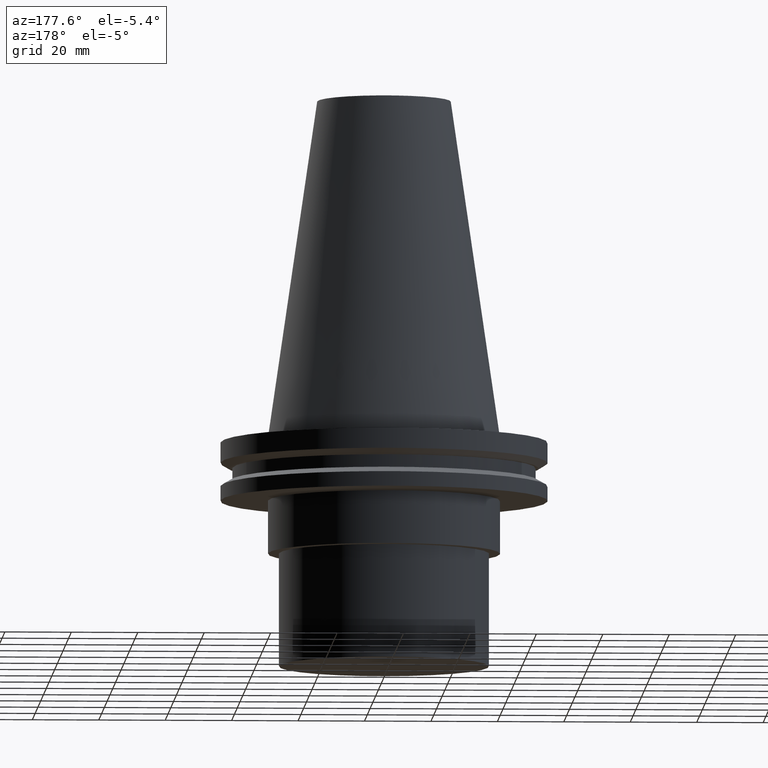
[diagram: clean part render]
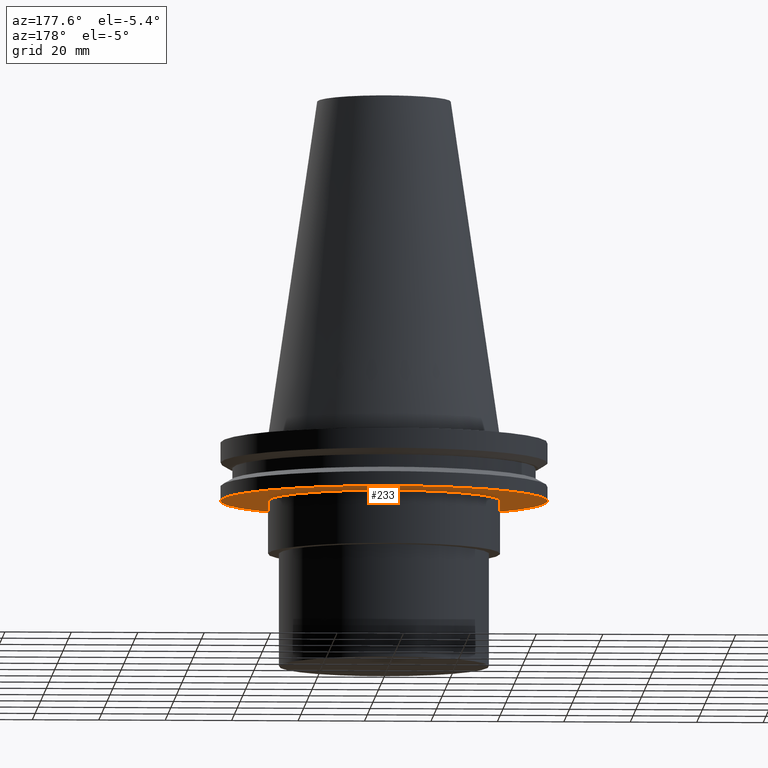
[diagram: same view with one face highlighted and labeled with its STEP entity id]
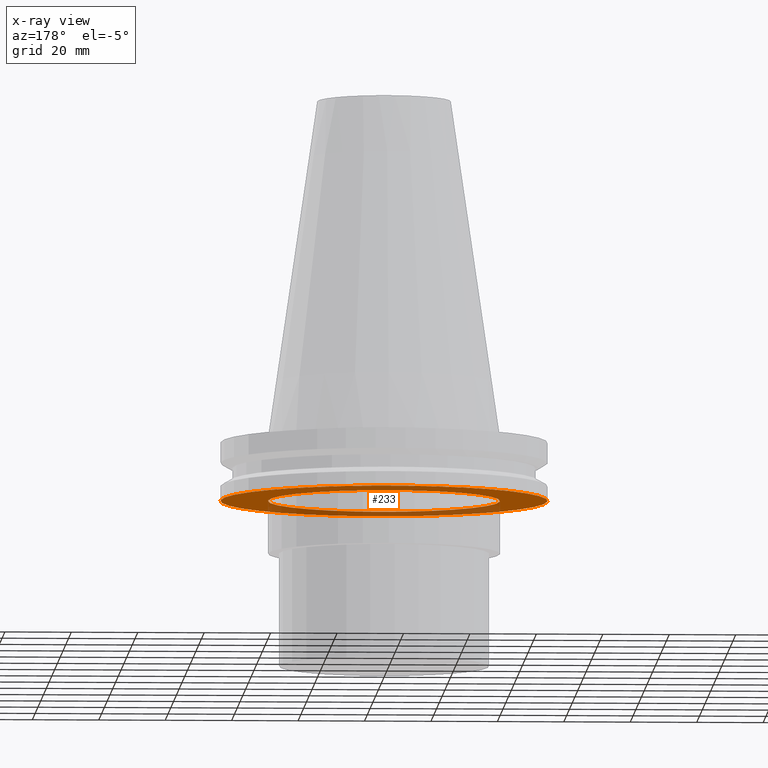
[diagram: x-ray of the same camera — body ghosted, the highlighted face saturated]
A machine part, auxiliary view. The second image highlights one B-rep face of the part: STEP entity #233.
The next image is the same camera in x-ray: the body ghosted, the highlighted face saturated — about 31% of this face is hidden behind the body in this view.
In plain terms, the highlighted planar face has unit normal (0, -0, 1).
Its self-contained STEP definition (entity closure, byte-faithful):
#6 = AXIS2_PLACEMENT_3D ( 'NONE', #171, #258, #19 ) ;
#7 = AXIS2_PLACEMENT_3D ( 'NONE', #339, #12, #195 ) ;
#12 = DIRECTION ( 'NONE',  ( -0.000000000000000000, -0.000000000000000000, 1.000000000000000000 ) ) ;
#19 = DIRECTION ( 'NONE',  ( 1.000000000000000000, 0.000000000000000000, 0.000000000000000000 ) ) ;
#21 = DIRECTION ( 'NONE',  ( 1.000000000000000000, 0.000000000000000000, 0.000000000000000000 ) ) ;
#26 = ORIENTED_EDGE ( 'NONE', *, *, #352, .T. ) ;
#48 = DIRECTION ( 'NONE',  ( 0.000000000000000000, -0.000000000000000000, 1.000000000000000000 ) ) ;
#74 = AXIS2_PLACEMENT_3D ( 'NONE', #292, #48, #21 ) ;
#115 = EDGE_LOOP ( 'NONE', ( #26 ) ) ;
#141 = EDGE_CURVE ( 'NONE', #256, #256, #376, .T. ) ;
#171 = CARTESIAN_POINT ( 'NONE',  ( 0.000000000000000000, 0.000000000000000000, -19.04999999999999716 ) ) ;
#195 = DIRECTION ( 'NONE',  ( 1.000000000000000000, 0.000000000000000000, 0.000000000000000000 ) ) ;
#197 = FACE_OUTER_BOUND ( 'NONE', #291, .T. ) ;
#204 = CARTESIAN_POINT ( 'NONE',  ( 34.92499999999999716, 0.000000000000000000, -19.04999999999999716 ) ) ;
#233 = ADVANCED_FACE ( 'NONE', ( #197, #382 ), #253, .F. ) ;
#235 = ORIENTED_EDGE ( 'NONE', *, *, #141, .F. ) ;
#253 = PLANE ( 'NONE',  #74 ) ;
#256 = VERTEX_POINT ( 'NONE', #266 ) ;
#258 = DIRECTION ( 'NONE',  ( -0.000000000000000000, -0.000000000000000000, 1.000000000000000000 ) ) ;
#266 = CARTESIAN_POINT ( 'NONE',  ( 49.21499999999998920, 0.000000000000000000, -19.04999999999999716 ) ) ;
#291 = EDGE_LOOP ( 'NONE', ( #235 ) ) ;
#292 = CARTESIAN_POINT ( 'NONE',  ( 0.000000000000000000, 49.21499999999998920, -19.04999999999999716 ) ) ;
#293 = VERTEX_POINT ( 'NONE', #204 ) ;
#339 = CARTESIAN_POINT ( 'NONE',  ( 0.000000000000000000, 0.000000000000000000, -19.04999999999999716 ) ) ;
#349 = CIRCLE ( 'NONE', #6, 34.92499999999999716 ) ;
#352 = EDGE_CURVE ( 'NONE', #293, #293, #349, .T. ) ;
#376 = CIRCLE ( 'NONE', #7, 49.21499999999998920 ) ;
#382 = FACE_BOUND ( 'NONE', #115, .T. ) ;